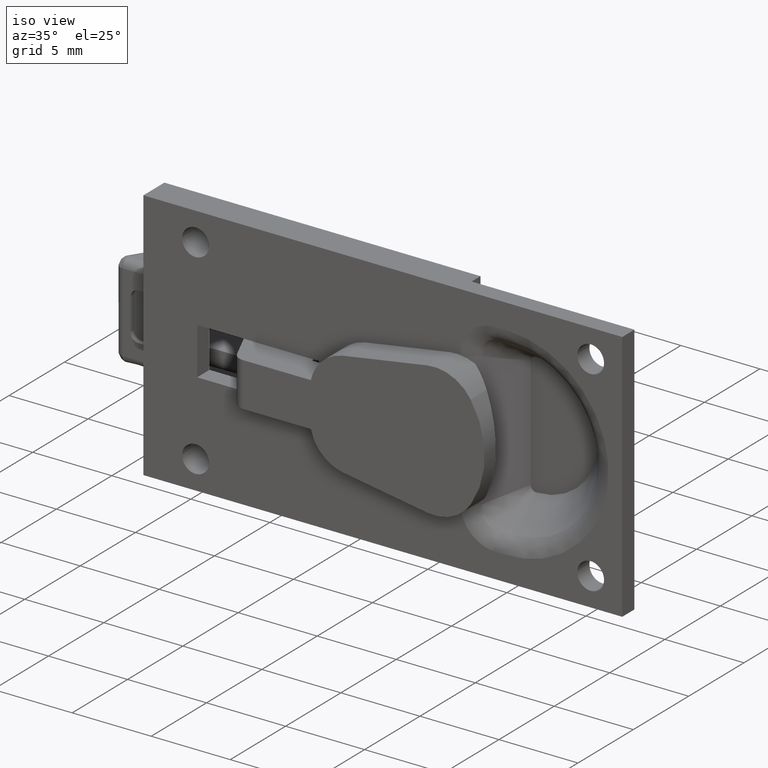
[diagram: clean part render]
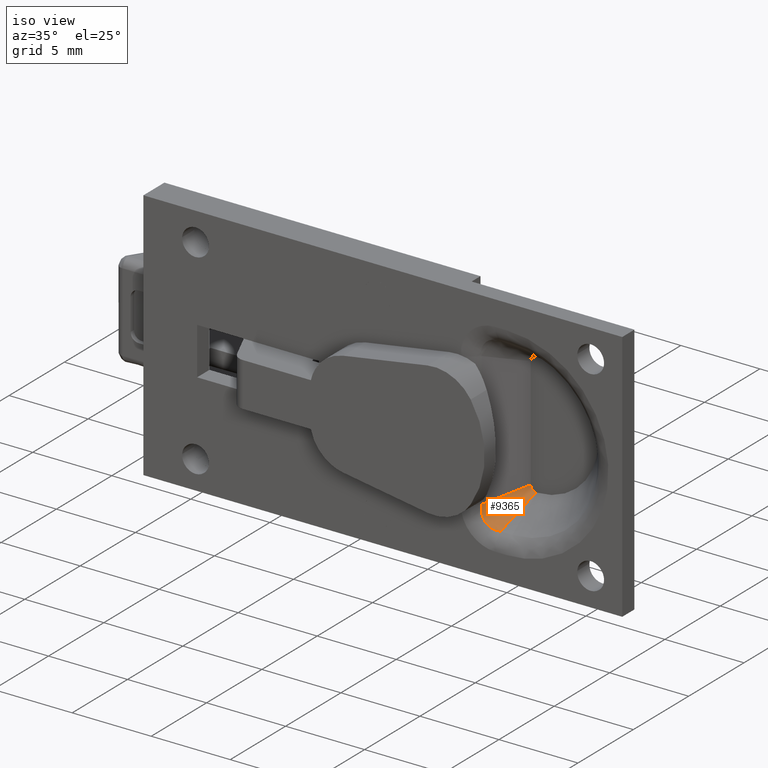
[diagram: same view with one face highlighted and labeled with its STEP entity id]
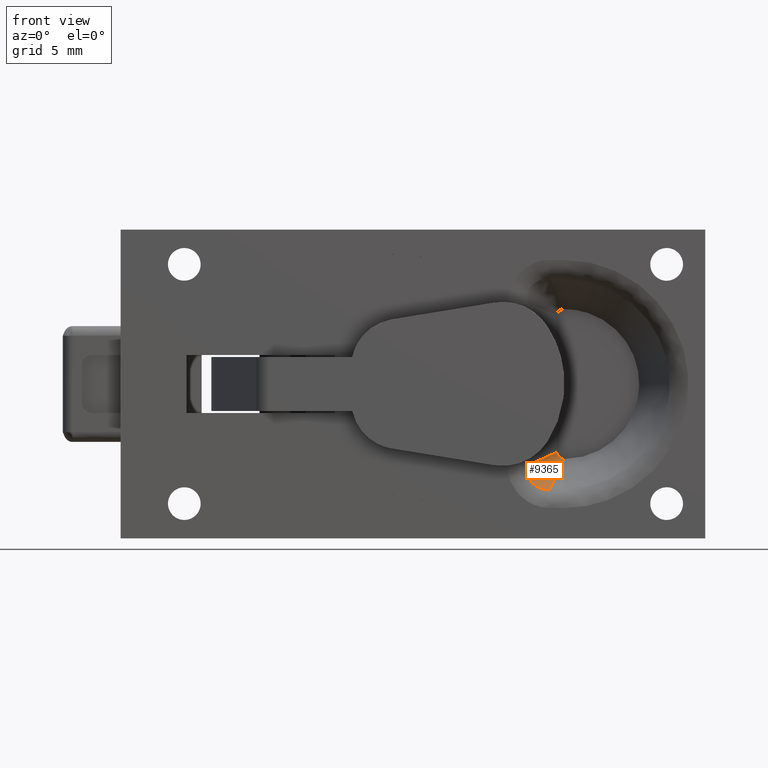
[diagram: same view with one face highlighted and labeled with its STEP entity id]
A machine part, iso view. The second image highlights one B-rep face of the part: STEP entity #9365.
A second angle (front view) of the same face is appended — the face is thin or edge-on in the first view.
In plain terms, the highlighted face is a freeform B-spline surface patch.
Its self-contained STEP definition (entity closure, byte-faithful):
#8630=CARTESIAN_POINT('',(14.255206519724080,0.502474591197044,-5.452111269047240));
#8631=VERTEX_POINT('',#8630);
#8758=CARTESIAN_POINT('',(13.047888730952740,0.502474591197042,-4.244793480275925));
#8759=VERTEX_POINT('',#8758);
#8804=CARTESIAN_POINT('',(13.047888730952760,0.502474591197043,-4.244793480275925));
#8805=CARTESIAN_POINT('',(13.045502273660000,0.499133837272587,-4.264995558428972));
#8806=CARTESIAN_POINT('',(13.043629054633589,0.495862998533229,-4.285520773131522));
#8807=CARTESIAN_POINT('',(13.041019383308869,0.489602860897988,-4.326289701807267));
#8808=CARTESIAN_POINT('',(13.040264465593770,0.486587741158717,-4.346687583473873));
#8809=CARTESIAN_POINT('',(13.039661156031761,0.477870489771586,-4.407919080791426));
#8810=CARTESIAN_POINT('',(13.041469344943700,0.472495453618622,-4.448790430692306));
#8811=CARTESIAN_POINT('',(13.049677343572579,0.462554088003746,-4.530624015290300));
#8812=CARTESIAN_POINT('',(13.056096438865531,0.458008314293663,-4.571459711503487));
#8813=CARTESIAN_POINT('',(13.073260410037470,0.449860764760674,-4.651282830859032));
#8814=CARTESIAN_POINT('',(13.094787802678530,0.442597913947289,-4.729733667597288));
#8815=CARTESIAN_POINT('',(13.125017213436051,0.436957199653919,-4.805435640018869));
#8816=CARTESIAN_POINT('',(13.159742378861329,0.432095840821660,-4.879712460761575));
#8817=CARTESIAN_POINT('',(13.179489415048829,0.430046602572833,-4.916344120297620));
#8818=CARTESIAN_POINT('',(13.222992605324810,0.426790818040347,-4.986826786125451));
#8819=CARTESIAN_POINT('',(13.246717335479261,0.425577748809019,-5.020697292971988));
#8820=CARTESIAN_POINT('',(13.298130873471310,0.423957988771209,-5.085683316066765));
#8821=CARTESIAN_POINT('',(13.325853270596101,0.423555284419491,-5.116799013613784));
#8822=CARTESIAN_POINT('',(13.413702968946700,0.423571554260862,-5.204511875928777));
#8823=CARTESIAN_POINT('',(13.479548472754120,0.425224706565211,-5.256356769199109));
#8824=CARTESIAN_POINT('',(13.619242435676020,0.431703517967652,-5.342370618671418));
#8825=CARTESIAN_POINT('',(13.693482931676639,0.436504930793381,-5.377120423131016));
#8826=CARTESIAN_POINT('',(13.811368905201800,0.446393521547911,-5.416558106963311));
#8827=CARTESIAN_POINT('',(13.851461023138130,0.450123171409571,-5.427439714974008));
#8828=CARTESIAN_POINT('',(13.931635701881779,0.458343256526339,-5.444450698102435));
#8829=CARTESIAN_POINT('',(13.971839042199020,0.462841337978439,-5.450636519058435));
#8830=CARTESIAN_POINT('',(14.052456368426441,0.472659450740278,-5.458585747614650));
#8831=CARTESIAN_POINT('',(14.092870425594370,0.477979442546019,-5.460348228011813));
#8832=CARTESIAN_POINT('',(14.153638361434890,0.486635898130683,-5.459723587822852));
#8833=CARTESIAN_POINT('',(14.173918857952049,0.489634397297671,-5.458969564538911));
#8834=CARTESIAN_POINT('',(14.214527474240271,0.495870898398629,-5.456365544386637));
#8835=CARTESIAN_POINT('',(14.235004441571110,0.499133837272289,-5.454497726340220));
#8836=CARTESIAN_POINT('',(14.255206519724080,0.502474591197043,-5.452111269047240));
#8837=B_SPLINE_CURVE_WITH_KNOTS('',3,(#8804,#8805,#8806,#8807,#8808,#8809,#8810,#8811,#8812,#8813,#8814,#8815,#8816,#8817,#8818,#8819,#8820,#8821,#8822,#8823,#8824,#8825,#8826,#8827,#8828,#8829,#8830,#8831,#8832,#8833,#8834,#8835,#8836),.UNSPECIFIED.,.F.,.U.,(4,2,2,2,2,1,2,2,2,2,2,2,2,2,2,2,4),(0.0,0.031250000000000,0.062500000000001,0.125000000000002,0.187500000000003,0.250000000000004,0.312500000000004,0.375000000000005,0.437500000000006,0.500000000000007,0.625000000000006,0.750000000000005,0.812500000000004,0.875000000000004,0.937500000000003,0.968750000000002,1.0),.UNSPECIFIED.);
#8838=EDGE_CURVE('',#8759,#8631,#8837,.T.);
#9270=CARTESIAN_POINT('',(14.973321040738680,2.714927529667178,-3.871652315976257));
#9271=CARTESIAN_POINT('',(14.715469557575839,2.836887701281141,-3.784530442424164));
#9272=CARTESIAN_POINT('',(14.628347684023730,2.714927529667178,-3.526678959261310));
#9273=CARTESIAN_POINT('',(14.956143807108971,2.662005857835272,-3.909456749509680));
#9274=CARTESIAN_POINT('',(14.682874454753810,2.791258467520763,-3.817125545246205));
#9275=CARTESIAN_POINT('',(14.590543250490310,2.662005857835272,-3.543856192891030));
#9276=CARTESIAN_POINT('',(14.938966573479250,2.609084186003366,-3.947261183043102));
#9277=CARTESIAN_POINT('',(14.650279351931767,2.745629233760385,-3.849720648068243));
#9278=CARTESIAN_POINT('',(14.552738816956881,2.609084186003366,-3.561033426520750));
#9279=CARTESIAN_POINT('',(14.921789339849520,2.556162514171460,-3.985065616576525));
#9280=CARTESIAN_POINT('',(14.617684249109725,2.700000000000007,-3.882315750890284));
#9281=CARTESIAN_POINT('',(14.514934383423460,2.556162514171460,-3.578210660150470));
#9282=CARTESIAN_POINT('',(14.666561233032530,1.769825295826935,-4.546783190431401));
#9283=CARTESIAN_POINT('',(14.133369570500420,2.022017549553396,-4.366630429499578));
#9284=CARTESIAN_POINT('',(13.953216809568589,1.769825295826939,-3.833438766967469));
#9285=CARTESIAN_POINT('',(14.411333126215530,0.983488077482413,-5.108500764286280));
#9286=CARTESIAN_POINT('',(13.649054891891126,1.344035099106782,-4.850945108108871));
#9287=CARTESIAN_POINT('',(13.391499235713720,0.983488077482416,-4.088666873784468));
#9288=CARTESIAN_POINT('',(14.156105019398529,0.197150859137890,-5.670218338141155));
#9289=CARTESIAN_POINT('',(13.164740213281833,0.666052648660169,-5.335259786718169));
#9290=CARTESIAN_POINT('',(12.829781661858840,0.197150859137894,-4.343894980601470));
#9298=(BOUNDED_SURFACE()B_SPLINE_SURFACE(2,3,((#9270,#9273,#9276,#9279,#9282,#9285,#9288),(#9271,#9274,#9277,#9280,#9283,#9286,#9289),(#9272,#9275,#9278,#9281,#9284,#9287,#9290)),.UNSPECIFIED.,.F.,.F.,.U.)B_SPLINE_SURFACE_WITH_KNOTS((3,3),(4,3,4),(0.0,2.063610275406568),(0.0,0.201802931333848,3.200293912171651),.UNSPECIFIED.)GEOMETRIC_REPRESENTATION_ITEM()RATIONAL_B_SPLINE_SURFACE(((1.0,1.0,1.0,1.0,1.0,1.0,1.0),(0.817886354491320,0.817886354491320,0.817886354491320,0.817886354491320,0.817886354491320,0.817886354491320,0.817886354491320),(1.0,1.0,1.0,1.0,1.0,1.0,1.0)))REPRESENTATION_ITEM('')SURFACE());
#9299=CARTESIAN_POINT('',(13.832786490031211,1.601237295598500,-3.888158796906987));
#9300=VERTEX_POINT('',#9299);
#9301=CARTESIAN_POINT('',(14.617684249109720,2.700000000000000,-3.531524113538025));
#9302=VERTEX_POINT('',#9301);
#9303=CARTESIAN_POINT('',(13.832786490031211,1.601237295598499,-3.888158796906987));
#9304=CARTESIAN_POINT('',(14.060169121161961,1.919545701789486,-3.784842751321481));
#9305=CARTESIAN_POINT('',(14.287551752292710,2.237854107980473,-3.681526705735976));
#9306=CARTESIAN_POINT('',(14.514934383423460,2.556162514171460,-3.578210660150470));
#9307=CARTESIAN_POINT('',(14.549184338652200,2.604108342780960,-3.562648477946329));
#9308=CARTESIAN_POINT('',(14.583434293880940,2.652054171390460,-3.547086295742187));
#9309=CARTESIAN_POINT('',(14.617684249109720,2.700000000000000,-3.531524113538025));
#9310=B_SPLINE_CURVE_WITH_KNOTS('',3,(#9303,#9304,#9305,#9306,#9307,#9308,#9309),.UNSPECIFIED.,.F.,.U.,(4,3,4),(0.185551234906843,0.274199853954874,0.287552726240614),.UNSPECIFIED.);
#9311=EDGE_CURVE('',#9300,#9302,#9310,.T.);
#9312=ORIENTED_EDGE('',*,*,#9311,.F.);
#9313=CARTESIAN_POINT('',(13.047888730952749,0.502474591197036,-4.244793480275928));
#9314=CARTESIAN_POINT('',(13.309521317312230,0.868728825997524,-4.125915252486280));
#9315=CARTESIAN_POINT('',(13.571153903671719,1.234983060798012,-4.007037024696634));
#9316=CARTESIAN_POINT('',(13.832786490031211,1.601237295598499,-3.888158796906987));
#9317=B_SPLINE_CURVE_WITH_KNOTS('',3,(#9313,#9314,#9315,#9316),.UNSPECIFIED.,.F.,.U.,(4,4),(0.083549743573073,0.185551234906843),.UNSPECIFIED.);
#9318=EDGE_CURVE('',#8759,#9300,#9317,.T.);
#9319=ORIENTED_EDGE('',*,*,#9318,.F.);
#9320=ORIENTED_EDGE('',*,*,#8838,.T.);
#9321=CARTESIAN_POINT('',(14.611841203093000,1.601237295598472,-4.667213509968800));
#9322=VERTEX_POINT('',#9321);
#9323=CARTESIAN_POINT('',(14.611841203093000,1.601237295598472,-4.667213509968799));
#9324=CARTESIAN_POINT('',(14.492962975303350,1.234983060797978,-4.928846096328293));
#9325=CARTESIAN_POINT('',(14.374084747513701,0.868728825997485,-5.190478682687787));
#9326=CARTESIAN_POINT('',(14.255206519724080,0.502474591197044,-5.452111269047240));
#9327=B_SPLINE_CURVE_WITH_KNOTS('',3,(#9323,#9324,#9325,#9326),.UNSPECIFIED.,.F.,.U.,(4,4),(0.185551234906846,0.287552726240618),.UNSPECIFIED.);
#9328=EDGE_CURVE('',#9322,#8631,#9327,.T.);
#9329=ORIENTED_EDGE('',*,*,#9328,.F.);
#9330=CARTESIAN_POINT('',(14.968475886461960,2.700000000000000,-3.882315750890280));
#9331=VERTEX_POINT('',#9330);
#9332=CARTESIAN_POINT('',(14.968475886461960,2.700000000000000,-3.882315750890280));
#9333=CARTESIAN_POINT('',(14.952913704257810,2.652054171390454,-3.916565706119053));
#9334=CARTESIAN_POINT('',(14.937351522053660,2.604108342780957,-3.950815661347789));
#9335=CARTESIAN_POINT('',(14.921789339849520,2.556162514171460,-3.985065616576525));
#9336=CARTESIAN_POINT('',(14.818473294264020,2.237854107980463,-4.212448247707282));
#9337=CARTESIAN_POINT('',(14.715157248678510,1.919545701789467,-4.439830878838041));
#9338=CARTESIAN_POINT('',(14.611841203093000,1.601237295598472,-4.667213509968799));
#9339=B_SPLINE_CURVE_WITH_KNOTS('',3,(#9332,#9333,#9334,#9335,#9336,#9337,#9338),.UNSPECIFIED.,.F.,.U.,(4,3,4),(0.083549743573074,0.096902615858813,0.185551234906846),.UNSPECIFIED.);
#9340=EDGE_CURVE('',#9331,#9322,#9339,.T.);
#9341=ORIENTED_EDGE('',*,*,#9340,.F.);
#9342=CARTESIAN_POINT('',(14.617684249109720,2.700000000000000,-3.531524113538025));
#9343=CARTESIAN_POINT('',(14.617684249109720,2.700000000000001,-3.554674916006894));
#9344=CARTESIAN_POINT('',(14.619965834392980,2.700000000000002,-3.577479626858003));
#9345=CARTESIAN_POINT('',(14.628939606695200,2.700000000000002,-3.622420008353289));
#9346=CARTESIAN_POINT('',(14.635739619068200,2.699999999999947,-3.644734548031328));
#9347=CARTESIAN_POINT('',(14.653313342586200,2.699999999999947,-3.687002752213876));
#9348=CARTESIAN_POINT('',(14.664084145372930,2.699999999999993,-3.707131798114990));
#9349=CARTESIAN_POINT('',(14.689640014161720,2.699999999999994,-3.745356281036063));
#9350=CARTESIAN_POINT('',(14.704381013387049,2.700000000000000,-3.763288661194368));
#9351=CARTESIAN_POINT('',(14.736659110704361,2.700000000000000,-3.795573124003745));
#9352=CARTESIAN_POINT('',(14.754368024584959,2.699999999999999,-3.810158979665008));
#9353=CARTESIAN_POINT('',(14.792794941985941,2.699999999999999,-3.835883408491265));
#9354=CARTESIAN_POINT('',(14.812958844885920,2.699999999999942,-3.846663680086163));
#9355=CARTESIAN_POINT('',(14.855120535085900,2.699999999999942,-3.864207109532643));
#9356=CARTESIAN_POINT('',(14.877348115580830,2.699999999999974,-3.871004484929213));
#9357=CARTESIAN_POINT('',(14.922472083360541,2.699999999999973,-3.880034070525853));
#9358=CARTESIAN_POINT('',(14.945325234824510,2.700000000000000,-3.882315750890280));
#9359=CARTESIAN_POINT('',(14.968475886461960,2.700000000000000,-3.882315750890280));
#9360=B_SPLINE_CURVE_WITH_KNOTS('',3,(#9342,#9343,#9344,#9345,#9346,#9347,#9348,#9349,#9350,#9351,#9352,#9353,#9354,#9355,#9356,#9357,#9358,#9359),.UNSPECIFIED.,.F.,.U.,(4,2,2,2,2,2,2,2,4),(0.0,0.125000000000000,0.250000000000000,0.375000000000000,0.500000000000000,0.625000000000000,0.750000000000000,0.875000000000000,1.0),.UNSPECIFIED.);
#9361=EDGE_CURVE('',#9302,#9331,#9360,.T.);
#9362=ORIENTED_EDGE('',*,*,#9361,.F.);
#9363=EDGE_LOOP('',(#9312,#9319,#9320,#9329,#9341,#9362));
#9364=FACE_OUTER_BOUND('',#9363,.T.);
#9365=ADVANCED_FACE('',(#9364),#9298,.T.);